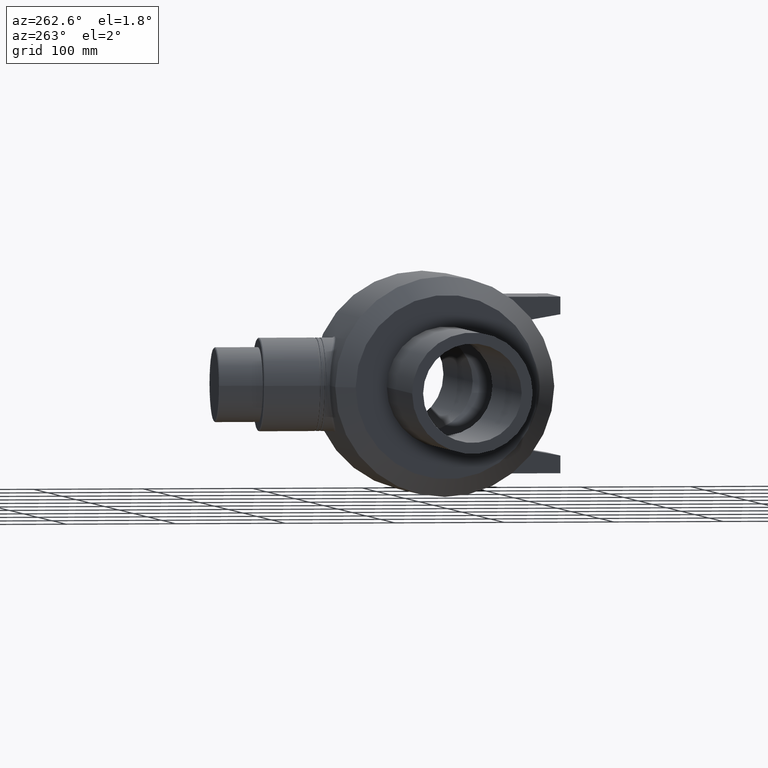
[diagram: clean part render]
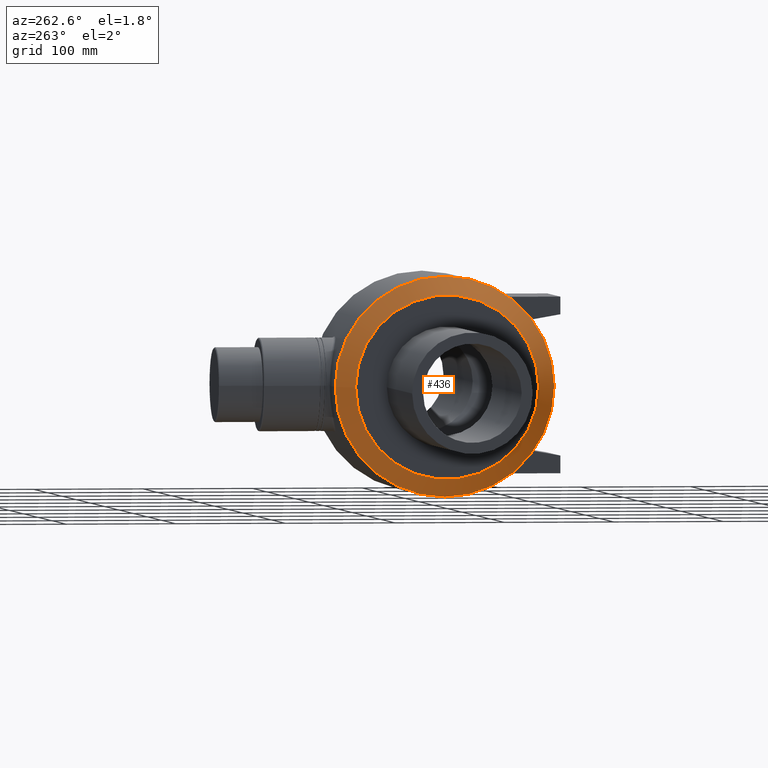
[diagram: same view with one face highlighted and labeled with its STEP entity id]
A machine part, auxiliary view. The second image highlights one B-rep face of the part: STEP entity #436.
In plain terms, the highlighted conical surface has half-angle 45 deg.
Its self-contained STEP definition (entity closure, byte-faithful):
#36=CONICAL_SURFACE('',#488,91.75,45.);
#92=FACE_BOUND('',#182,.T.);
#135=FACE_OUTER_BOUND('',#181,.T.);
#181=EDGE_LOOP('',(#392));
#182=EDGE_LOOP('',(#393));
#205=CIRCLE('',#452,100.);
#219=CIRCLE('',#486,83.5);
#232=VERTEX_POINT('',#827);
#258=VERTEX_POINT('',#907);
#272=EDGE_CURVE('',#232,#232,#205,.T.);
#306=EDGE_CURVE('',#258,#258,#219,.T.);
#392=ORIENTED_EDGE('',*,*,#272,.F.);
#393=ORIENTED_EDGE('',*,*,#306,.T.);
#436=ADVANCED_FACE('',(#135,#92),#36,.T.);
#452=AXIS2_PLACEMENT_3D('',#828,#516,#517);
#486=AXIS2_PLACEMENT_3D('',#908,#604,#605);
#488=AXIS2_PLACEMENT_3D('',#911,#608,#609);
#516=DIRECTION('center_axis',(1.,0.,0.));
#517=DIRECTION('ref_axis',(0.,0.,-1.));
#604=DIRECTION('center_axis',(1.,0.,0.));
#605=DIRECTION('ref_axis',(0.,0.,-1.));
#608=DIRECTION('center_axis',(1.,0.,0.));
#609=DIRECTION('ref_axis',(0.,1.,0.));
#827=CARTESIAN_POINT('',(-80.5,100.,0.));
#828=CARTESIAN_POINT('Origin',(-80.5,0.,0.));
#907=CARTESIAN_POINT('',(-97.,83.5,0.));
#908=CARTESIAN_POINT('Origin',(-97.,0.,0.));
#911=CARTESIAN_POINT('Origin',(-88.75,0.,0.));